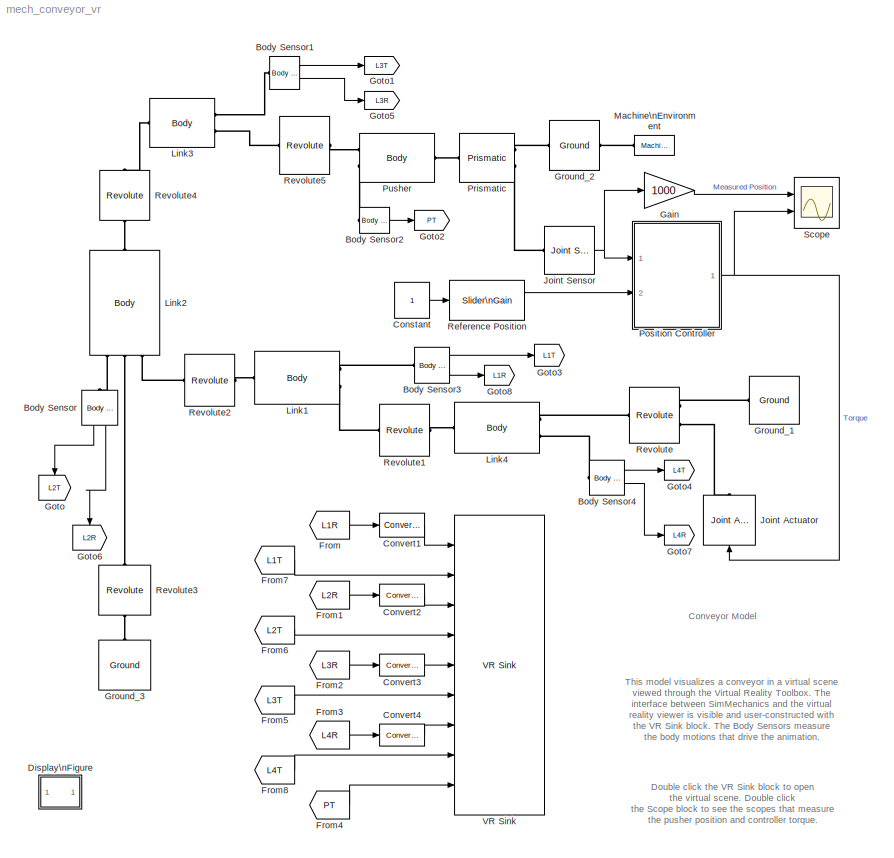
MODEL mech_conveyor_vr
KIND model
CONFIG InitFcn = mech_slider_open('mech_conveyor_vr')
CONFIG PreLoadFcn = load mech_conveyor_controller;
BLOCK [Reference] Body Sensor  REF=mblibv1/Sensors & \nActuators/Body Sensor
  Acceleration = off
  AccelerationUnits = m/s^2
  ActiveIO = on
  Angle = on
  AngleUnits = deg
  ArcAcceleration = off
  ArcAccelerationUnits = deg/s^2
  ArcVelocity = off
  ArcVelocityUnits = deg/s
  ClassName = BodySensor
  CoordPosition = on
  CoordPositionUnits = m
  Description = Mechanical Blockset
  DialogClass = MechanicalSensorBlock
  Muxed = off
  Opaque = on
  OutputVector = [ 3 9 ]
  PhysicalDomain = Mechanical
  PortType = blob
  Ports = [0, 2, 0, 0, 0, 1]
  Pose = on
  Quaternion = on
  QuaternionDDT = off
  QuaternionDT = off
  QuaternionUnits = off
  ReferenceFrame = Absolute (World)
  ShowPortLabels = on
  SourceBlock = mblibv1/Sensors & \nActuators/Body Sensor
  SourceType = msb
  Velocity = off
  VelocityUnits = m/s
  Width = 12
BLOCK [Reference] Body Sensor1  REF=mblibv1/Sensors & \nActuators/Body Sensor
  Acceleration = off
  AccelerationUnits = m/s^2
  ActiveIO = on
  Angle = on
  AngleUnits = deg
  ArcAcceleration = off
  ArcAccelerationUnits = deg/s^2
  ArcVelocity = off
  ArcVelocityUnits = deg/s
  ClassName = BodySensor
  CoordPosition = on
  CoordPositionUnits = m
  Description = Mechanical Blockset
  DialogClass = MechanicalSensorBlock
  Muxed = off
  Opaque = on
  OutputVector = [ 3 9 ]
  PhysicalDomain = Mechanical
  PortType = blob
  Ports = [0, 2, 0, 0, 0, 1]
  Pose = on
  Quaternion = on
  QuaternionDDT = off
  QuaternionDT = off
  QuaternionUnits = off
  ReferenceFrame = Absolute (World)
  ShowPortLabels = on
  SourceBlock = mblibv1/Sensors & \nActuators/Body Sensor
  SourceType = msb
  Velocity = off
  VelocityUnits = m/s
  Width = 12
BLOCK [Reference] Body Sensor2  REF=mblibv1/Sensors & \nActuators/Body Sensor
  Acceleration = off
  AccelerationUnits = m/s^2
  ActiveIO = on
  Angle = on
  AngleUnits = deg
  ArcAcceleration = off
  ArcAccelerationUnits = deg/s^2
  ArcVelocity = off
  ArcVelocityUnits = deg/s
  ClassName = BodySensor
  CoordPosition = on
  CoordPositionUnits = m
  Description = Mechanical Blockset
  DialogClass = MechanicalSensorBlock
  Muxed = on
  Opaque = on
  OutputVector = [ 3 ]
  PhysicalDomain = Mechanical
  PortType = blob
  Ports = [0, 1, 0, 0, 0, 1]
  Pose = off
  Quaternion = on
  QuaternionDDT = off
  QuaternionDT = off
  QuaternionUnits = off
  ReferenceFrame = Absolute (World)
  ShowPortLabels = on
  SourceBlock = mblibv1/Sensors & \nActuators/Body Sensor
  SourceType = msb
  Velocity = off
  VelocityUnits = m/s
  Width = 3
BLOCK [Reference] Body Sensor3  REF=mblibv1/Sensors & \nActuators/Body Sensor
  Acceleration = off
  AccelerationUnits = m/s^2
  ActiveIO = on
  Angle = on
  AngleUnits = deg
  ArcAcceleration = off
  ArcAccelerationUnits = deg/s^2
  ArcVelocity = off
  ArcVelocityUnits = deg/s
  ClassName = BodySensor
  CoordPosition = on
  CoordPositionUnits = m
  Description = Mechanical Blockset
  DialogClass = MechanicalSensorBlock
  Muxed = off
  Opaque = on
  OutputVector = [ 3 9 ]
  PhysicalDomain = Mechanical
  PortType = blob
  Ports = [0, 2, 0, 0, 0, 1]
  Pose = on
  Quaternion = on
  QuaternionDDT = off
  QuaternionDT = off
  QuaternionUnits = off
  ReferenceFrame = Absolute (World)
  ShowPortLabels = on
  SourceBlock = mblibv1/Sensors & \nActuators/Body Sensor
  SourceType = msb
  Velocity = off
  VelocityUnits = m/s
  Width = 12
BLOCK [Reference] Body Sensor4  REF=mblibv1/Sensors & \nActuators/Body Sensor
  Acceleration = off
  AccelerationUnits = m/s^2
  ActiveIO = on
  Angle = on
  AngleUnits = deg
  ArcAcceleration = off
  ArcAccelerationUnits = deg/s^2
  ArcVelocity = off
  ArcVelocityUnits = deg/s
  ClassName = BodySensor
  CoordPosition = on
  CoordPositionUnits = m
  Description = Mechanical Blockset
  DialogClass = MechanicalSensorBlock
  Muxed = off
  Opaque = on
  OutputVector = [ 3 9 ]
  PhysicalDomain = Mechanical
  PortType = blob
  Ports = [0, 2, 0, 0, 0, 1]
  Pose = on
  Quaternion = on
  QuaternionDDT = off
  QuaternionDT = off
  QuaternionUnits = off
  ReferenceFrame = Absolute (World)
  ShowPortLabels = on
  SourceBlock = mblibv1/Sensors & \nActuators/Body Sensor
  SourceType = msb
  Velocity = off
  VelocityUnits = m/s
  Width = 12
BLOCK [Constant] Constant
BLOCK [Reference] Convert1  REF=mblibv1/Utilities/Convert from Rotation Matrix to\nVirtual Reality Toolbox
  Ports = [1, 1]
  SourceBlock = mblibv1/Utilities/Convert from Rotation Matrix to\nVirtual Reality Toolbox
  SourceType = RotationMatrix2VR
  Tag = Pose2VR
BLOCK [Reference] Convert2  REF=mblibv1/Utilities/Convert from Rotation Matrix to\nVirtual Reality Toolbox
  Ports = [1, 1]
  SourceBlock = mblibv1/Utilities/Convert from Rotation Matrix to\nVirtual Reality Toolbox
  SourceType = RotationMatrix2VR
  Tag = Pose2VR
BLOCK [Reference] Convert3  REF=mblibv1/Utilities/Convert from Rotation Matrix to\nVirtual Reality Toolbox
  Ports = [1, 1]
  SourceBlock = mblibv1/Utilities/Convert from Rotation Matrix to\nVirtual Reality Toolbox
  SourceType = RotationMatrix2VR
  Tag = Pose2VR
BLOCK [Reference] Convert4  REF=mblibv1/Utilities/Convert from Rotation Matrix to\nVirtual Reality Toolbox
  Ports = [1, 1]
  SourceBlock = mblibv1/Utilities/Convert from Rotation Matrix to\nVirtual Reality Toolbox
  SourceType = RotationMatrix2VR
  Tag = Pose2VR
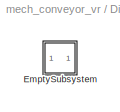
BLOCK [SubSystem] Display\nFigure
  AttributesFormatString = <path>
  Description = Help callback for virtual reality conveyor model: mech_conveyor_vr.  Opens Help browser to Type 19 marker at documentation for this tutorial model.
  MaskDisplay = disp('?');
  MaskIconFrame = off
  MaskIconOpaque = on
  MaskIconRotate = none
  MaskIconUnits = normalized
  MaskSelfModifiable = on
  MaskType = Help callback
  MinAlgLoopOccurrences = off
  OpenFcn = helpview([docroot '/toolbox/physmod/mech/mech.map'], 'mech_conveyor_vr_help');
  Ports = []
  RTWSystemCode = Auto
  Tag = Help
  TreatAsAtomicUnit = off
BLOCK [SubSystem] Display\nFigure/EmptySubsystem
  MinAlgLoopOccurrences = off
  Ports = []
  RTWSystemCode = Auto
  TreatAsAtomicUnit = off
BLOCK [From] From
  CloseFcn = tagdialog Close
  DialogController = Simulink.DDGSource
  GotoTag = L1R
BLOCK [From] From1
  CloseFcn = tagdialog Close
  DialogController = Simulink.DDGSource
  GotoTag = L2R
BLOCK [From] From2
  CloseFcn = tagdialog Close
  DialogController = Simulink.DDGSource
  GotoTag = L3R
BLOCK [From] From3
  CloseFcn = tagdialog Close
  DialogController = Simulink.DDGSource
  GotoTag = L4R
BLOCK [From] From4
  CloseFcn = tagdialog Close
  DialogController = Simulink.DDGSource
  GotoTag = PT
BLOCK [From] From5
  CloseFcn = tagdialog Close
  DialogController = Simulink.DDGSource
  GotoTag = L3T
BLOCK [From] From6
  CloseFcn = tagdialog Close
  DialogController = Simulink.DDGSource
  GotoTag = L2T
BLOCK [From] From7
  CloseFcn = tagdialog Close
  DialogController = Simulink.DDGSource
  GotoTag = L1T
BLOCK [From] From8
  CloseFcn = tagdialog Close
  DialogController = Simulink.DDGSource
  GotoTag = L4T
BLOCK [Gain] Gain
  Gain = 1000
BLOCK [Goto] Goto
  DialogController = Simulink.DDGSource
  GotoTag = L2T
  TagVisibility = global
BLOCK [Goto] Goto1
  DialogController = Simulink.DDGSource
  GotoTag = L3T
  TagVisibility = global
BLOCK [Goto] Goto2
  DialogController = Simulink.DDGSource
  GotoTag = PT
  TagVisibility = global
BLOCK [Goto] Goto3
  DialogController = Simulink.DDGSource
  GotoTag = L1T
  TagVisibility = global
BLOCK [Goto] Goto4
  DialogController = Simulink.DDGSource
  GotoTag = L4T
  TagVisibility = global
BLOCK [Goto] Goto5
  DialogController = Simulink.DDGSource
  GotoTag = L3R
  TagVisibility = global
BLOCK [Goto] Goto6
  DialogController = Simulink.DDGSource
  GotoTag = L2R
  TagVisibility = global
BLOCK [Goto] Goto7
  DialogController = Simulink.DDGSource
  GotoTag = L4R
  TagVisibility = global
BLOCK [Goto] Goto8
  DialogController = Simulink.DDGSource
  GotoTag = L1R
  TagVisibility = global
BLOCK [Reference] Ground_1  REF=mblibv1/Bodies/Ground
  ClassName = Ground
  CoordPosition = [0.280 0.210 0]
  CoordPositionUnits = m
  DialogClass = GroundBlock
  LeftPortType = env
  MachineId = [0 0]
  Opaque = on
  PhysicalDomain = Mechanical
  Ports = [0, 0, 0, 0, 0, 0, 1]
  RightPortType = workingframe
  ShowEnvPort = off
  ShowPortLabels = on
  SourceBlock = mblibv1/Bodies/Ground
  SourceType = msb
  StateVectorMgrId = -1
  UserData = DataTag0
  UserDataPersistent = on
BLOCK [Reference] Ground_2  REF=mblibv1/Bodies/Ground
  ClassName = Ground
  CoordPosition = [0.412 0.5 0]
  CoordPositionUnits = m
  DialogClass = GroundBlock
  LeftPortType = env
  MachineId = [0 0]
  Opaque = on
  PhysicalDomain = Mechanical
  Ports = [0, 0, 0, 0, 0, 1, 1]
  RightPortType = workingframe
  ShowEnvPort = on
  ShowPortLabels = on
  SourceBlock = mblibv1/Bodies/Ground
  SourceType = msb
  StateVectorMgrId = -1
  UserData = DataTag1
  UserDataPersistent = on
BLOCK [Reference] Ground_3  REF=mblibv1/Bodies/Ground
  ClassName = Ground
  CoordPosition = [0.08 0.11 0]
  CoordPositionUnits = m
  DialogClass = GroundBlock
  LeftPortType = env
  MachineId = [0 0]
  Opaque = on
  PhysicalDomain = Mechanical
  Ports = [0, 0, 0, 0, 0, 0, 1]
  RightPortType = workingframe
  ShowEnvPort = off
  ShowPortLabels = on
  SourceBlock = mblibv1/Bodies/Ground
  SourceType = msb
  StateVectorMgrId = -1
  UserData = DataTag2
  UserDataPersistent = on
BLOCK [Reference] Joint Actuator  REF=mblibv1/Sensors & \nActuators/Joint Actuator
  AccelerationUnits = m/s^2
  ActiveIO = on
  ActuationStyle = Force
  AngleUnits = rad
  ArcAccelerationUnits = rad/s^2
  ArcVelocityUnits = rad/s
  ClassName = JointActuator
  CoordPositionUnits = m
  Description = Mechanical Blockset
  DialogClass = MechanicalActuatorBlock
  ForceUnits = N
  Opaque = on
  PhysicalDomain = Mechanical
  PortType = blob
  Ports = [1, 0, 0, 0, 0, 0, 1]
  Primitive = R1
  ReferenceFrame = Absolute (INERTIAL)
  ShowPortLabels = on
  SourceBlock = mblibv1/Sensors & \nActuators/Joint Actuator
  SourceType = msb
  TorqueUnits = N-m
  VelocityUnits = m/s
  Width = 1
BLOCK [Reference] Joint Sensor  REF=mblibv1/Sensors & \nActuators/Joint Sensor
  Acceleration = off
  AccelerationUnits = m/s^2
  ActiveIO = on
  Angle = on
  AngleUnits = deg
  ArcAcceleration = off
  ArcAccelerationUnits = deg/s^2
  ArcVelocity = off
  ArcVelocityUnits = deg/s
  ClassName = JointSensor
  CoordPosition = on
  CoordPositionUnits = m
  Description = Mechanical Blockset
  DialogClass = MechanicalSensorBlock
  Force = off
  ForceUnits = N
  Muxed = on
  Opaque = on
  OutputVector = [ 1 ]
  PhysicalDomain = Mechanical
  PortType = blob
  Ports = [0, 1, 0, 0, 0, 1]
  Pose = off
  Primitive = P1
  Quaternion = on
  QuaternionDDT = off
  QuaternionDT = off
  QuaternionUnits = off
  ReactionForce = off
  ReactionForceUnits = N
  ReactionMoment = off
  ReactionMomentUnits = N-m
  ReactionReferenceFrame = Absolute (World)
  ReactionSensedSide = Base
  ReferenceFrame = Absolute (INERTIAL)
  ShowPortLabels = on
  SourceBlock = mblibv1/Sensors & \nActuators/Joint Sensor
  SourceType = msb
  Torque = off
  TorqueUnits = N-m
  Velocity = off
  VelocityUnits = m/s
  Width = 1
BLOCK [Reference] Link1  REF=mblibv1/Bodies/Body
  CG = Left$CG$[0.110 0.247 0]$WORLD$WORLD$m$[0 0 -4.22]$Euler X-Y-Z$deg$WORLD$false
  ClassName = Body
  Density = 1
  DensityUnits = kg/m^3
  DensityUse = false
  Description = Mechanical Blockset
  DialogClass = MechanicalBodyBlock
  Inertia = [7.6414e-005 -9.2222e-005 1.8971e-009;-9.2222e-005 0.0083286 -2.5235e-010;1.8971e-009 -2.5235e-010 0.0083397]
  InertiaUnits = kg*m^2
  LConnTagsString = CS3|CS1
  LeftPortType = workingframe
  Mass = 0.98785
  MassUnits = kg
  PhysicalDomain = mechanical
  Ports = [0, 0, 0, 0, 0, 2, 1]
  RConnTagsString = CS2
  RightPortType = workingframe
  Shape = Cylinder
  ShapeDims = [1 1]
  ShapeUnits = m
  ShapeUse = false
  SourceBlock = mblibv1/Bodies/Body
  SourceType = msb
  SubClassName = Unknown
  Tag = Factory generic
  WorkingFrames = Left$CS3$[0 0 0]$WORLD$WORLD$m$[0 0 0]$Euler X-Y-Z$deg$WORLD$true#Left$CS1$[0.265 0.236 0]$WORLD$WORLD$m$[0 0 0]$Euler X-Y-Z$deg$WORLD$true#Right$CS2$[-0.299 0.022 0]$WORLD$CS1$m$[0 0 0]$Euler X-Y-Z$deg$WORLD$true
BLOCK [Reference] Link2  REF=mblibv1/Bodies/Body
  CG = Left$CG$[-0.030 0.402 0]$WORLD$WORLD$m$[0 0 95.31]$Euler X-Y-Z$deg$WORLD$false
  ClassName = Body
  Density = 1
  DensityUnits = kg/m^3
  DensityUse = false
  Description = Mechanical Blockset
  DialogClass = MechanicalBodyBlock
  Inertia = [0.0044915 2.9472e-005 1.0996e-007;2.9472e-005 0.089001 -4.3534e-007;1.0996e-007 -4.3534e-007 0.093312]
  InertiaUnits = kg*m^2
  LConnTagsString = CS4|CS1|CS2
  LeftPortType = workingframe
  Mass = 2.7433
  MassUnits = kg
  PhysicalDomain = mechanical
  Ports = [0, 0, 0, 0, 0, 3, 1]
  RConnTagsString = CS3
  RightPortType = workingframe
  Shape = Cylinder
  ShapeDims = [1 1]
  ShapeUnits = m
  ShapeUse = false
  SourceBlock = mblibv1/Bodies/Body
  SourceType = msb
  SubClassName = Unknown
  Tag = Factory generic
  WorkingFrames = Left$CS4$[0 0 0]$WORLD$WORLD$m$[0 0 0]$Euler X-Y-Z$deg$WORLD$true#Left$CS1$[0.08 0.11 0]$WORLD$WORLD$m$[0 0 0]$Euler X-Y-Z$deg$WORLD$true#Left$CS2$[-0.114 0.148 0]$WORLD$CS1$m$[0 0 0]$Euler X-Y-Z$deg$WORLD$true#Right$CS3$[0.059 0.449 0]$WORLD$CS2$m$[0 0 0]$Euler X-Y-Z$deg$WORLD$true
BLOCK [Reference] Link3  REF=mblibv1/Bodies/Body
  CG = Left$CG$[0.194 0.604 0.01]$WORLD$WORLD$m$[90 -31.24 0]$Euler X-Y-Z$deg$WORLD$false
  ClassName = Body
  Density = 1
  DensityUnits = kg/m^3
  DensityUse = false
  Description = Mechanical Blockset
  DialogClass = MechanicalBodyBlock
  Inertia = [8.2129e-005 1.8216e-005 -3.7069e-010;1.8216e-005 0.017391 -2.6914e-011;-3.7069e-010 -2.6914e-011 0.017392]
  InertiaUnits = kg*m^2
  LConnTagsString = CS1
  LeftPortType = workingframe
  Mass = 1.2355
  MassUnits = kg
  PhysicalDomain = mechanical
  Ports = [0, 0, 0, 0, 0, 1, 2]
  RConnTagsString = CS3|CS2
  RightPortType = workingframe
  Shape = Cylinder
  ShapeDims = [1 1]
  ShapeUnits = m
  ShapeUse = false
  SourceBlock = mblibv1/Bodies/Body
  SourceType = msb
  SubClassName = Unknown
  Tag = Factory generic
  WorkingFrames = Right$CS3$[0 0 0]$WORLD$WORLD$m$[0 0 0]$Euler X-Y-Z$deg$WORLD$true#Left$CS1$[0.025 0.707 0]$WORLD$WORLD$m$[0 0 0]$Euler X-Y-Z$deg$WORLD$true#Right$CS2$[0.342 -0.207 0]$WORLD$CS1$m$[0 0 0]$Euler X-Y-Z$deg$WORLD$true
BLOCK [Reference] Link4  REF=mblibv1/Bodies/Body
  CG = Left$CG$[0.272 0.223 0.01]$WORLD$WORLD$m$[0 0 30]$Euler X-Y-Z$deg$WORLD$false
  ClassName = Body
  Density = 1
  DensityUnits = kg/m^3
  DensityUse = false
  Description = Mechanical Blockset
  DialogClass = MechanicalBodyBlock
  Inertia = [1.0148e-005 0 0;0 2.5218e-006 0;0 0 1.1711e-005]
  InertiaUnits = kg*m^2
  LConnTagsString = CS1|CS3
  LeftPortType = workingframe
  Mass = 0.057538
  MassUnits = kg
  PhysicalDomain = mechanical
  Ports = [0, 0, 0, 0, 0, 2, 1]
  RConnTagsString = CS2
  RightPortType = workingframe
  Shape = Cylinder
  ShapeDims = [1 1]
  ShapeUnits = m
  ShapeUse = false
  SourceBlock = mblibv1/Bodies/Body
  SourceType = msb
  SubClassName = Unknown
  Tag = Factory generic
  WorkingFrames = Left$CS1$[0.280 0.210 0]$WORLD$WORLD$m$[0 0 0]$Euler X-Y-Z$deg$WORLD$true#Right$CS2$[-0.015 0.026 0]$CS1$CS1$m$[0 0 0]$Euler X-Y-Z$deg$WORLD$true#Left$CS3$[0 0 0]$WORLD$WORLD$m$[0 0 0]$Euler X-Y-Z$deg$WORLD$true
BLOCK [Reference] Machine\nEnvironment  REF=mblibv1/Bodies/Machine\nEnvironment
  AnalysisType = Forward dynamics
  AngularAssemblyTolerance = 1e-3
  AngularAssemblyToleranceUnits = rad
  ClassName = Environment
  ConstraintAbsTolerance = 1e-4
  ConstraintRelTolerance = 1e-4
  ConstraintSolverType = Stabilizing
  DialogController = MECH.DialogSource
  DialogTemplateClass = MECH.MachineEnvironment
  Dimensionality = 3D Only
  Gravity = [0 -9.81 0]
  GravityAsSignal = off
  GravityUnits = m/s^2
  LinearAssemblyTolerance = 1e-3
  LinearAssemblyToleranceUnits = m
  Opaque = on
  PerturbationSize = 1e-3
  PhysicalDomain = Mechanical
  PortType = env
  Ports = [0, 0, 0, 0, 0, 0, 1]
  ShowPortLabels = on
  SourceBlock = mblibv1/Bodies/Machine\nEnvironment
  SourceType = Mechanical
  StatePerturbationType = Adaptive
  SyncWhenCopied = off
  Tag = Factory ground
  UseRobustSingularityHandling = off
  VisualizeMachine = on
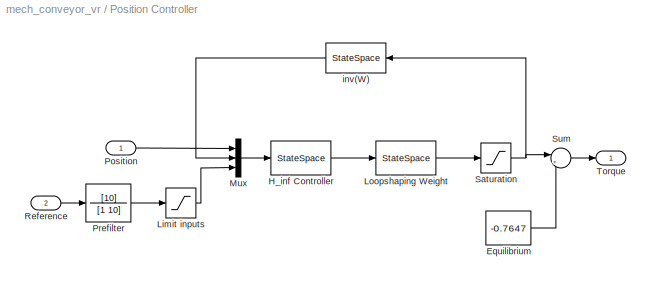
BLOCK [SubSystem] Position Controller
  MinAlgLoopOccurrences = off
  Ports = [2, 1]
  RTWSystemCode = Auto
  TreatAsAtomicUnit = off
BLOCK [Constant] Position Controller/Equilibrium
  Value = -0.7647
BLOCK [StateSpace] Position Controller/H_inf Controller
  A = Ak
  B = Bk
  C = Ck
  D = Dk
BLOCK [Saturate] Position Controller/Limit inputs
  LowerLimit = 0
  UpperLimit = 0.2
  ZeroCross = off
BLOCK [StateSpace] Position Controller/Loopshaping Weight
  A = Aw
  B = Bw
  C = Cw
  D = Dw
BLOCK [Mux] Position Controller/Mux
  DisplayOption = bar
  Inputs = 3
  Ports = [3, 1]
BLOCK [Inport] Position Controller/Position
  IconDisplay = Port number
  LatchInput = off
  Port = 1
BLOCK [TransferFcn] Position Controller/Prefilter
  Denominator = [1 10]
  Numerator = [10]
BLOCK [Inport] Position Controller/Reference
  IconDisplay = Port number
  LatchInput = off
  Port = 2
BLOCK [Saturate] Position Controller/Saturation
  LowerLimit = -5+0.7647
  UpperLimit = 5
  ZeroCross = off
BLOCK [Sum] Position Controller/Sum
  IconShape = round
  Inputs = |++
  Ports = [2, 1]
BLOCK [Outport] Position Controller/Torque
  BusOutputAsStruct = off
  IconDisplay = Port number
BLOCK [StateSpace] Position Controller/inv(W)
  A = Awinv
  B = Bwinv
  C = Cwinv
  D = Dwinv
BLOCK [Reference] Prismatic  REF=mblibv1/Joints/Prismatic
  ClassName = Joint
  CutJoint = off
  Description = Mechanical Blockset
  DialogClass = JointBlock
  LConnTagsString = __newl0|SA1
  LeftPortType = blob
  MarkAsCut = off
  NumSAPorts = 1
  PhysicalDomain = mechanical
  Ports = [0, 0, 0, 0, 0, 2, 1]
  PrimitiveProps = P1$WORLD$[1 0 0]$prismatic
  Primitives = prismatic
  RConnTagsString = __newr0
  RightPortType = blob
  SourceBlock = mblibv1/Joints/Prismatic
  SourceType = msb
  SubClassName = Unknown
  Tag = Factory generic
BLOCK [Reference] Pusher  REF=mblibv1/Bodies/Body
  CG = Left$CG$[0.396 0.499 0]$WORLD$WORLD$m$[0 0 0]$Euler X-Y-Z$deg$WORLD$false
  ClassName = Body
  Density = 1
  DensityUnits = kg/m^3
  DensityUse = false
  Description = Mechanical Blockset
  DialogClass = MechanicalBodyBlock
  Inertia = [0.0025031 -1.671e-006 5.5014e-006;-1.671e-006 0.0016406 -1.8596e-007;5.5014e-006 -1.8596e-007 0.0011862]
  InertiaUnits = kg*m^2
  LConnTagsString = CS1|CS3
  LeftPortType = workingframe
  Mass = 1.8547
  MassUnits = kg
  PhysicalDomain = mechanical
  Ports = [0, 0, 0, 0, 0, 2, 1]
  RConnTagsString = CS2
  RightPortType = workingframe
  Shape = Cylinder
  ShapeDims = [1 1]
  ShapeUnits = m
  ShapeUse = false
  SourceBlock = mblibv1/Bodies/Body
  SourceType = msb
  SubClassName = Unknown
  Tag = Factory generic
  WorkingFrames = Left$CS1$[0.367 0.5 0]$WORLD$WORLD$m$[0 0 0]$Euler X-Y-Z$deg$WORLD$true#Right$CS2$[0.045 0 0]$WORLD$CS1$m$[0 0 0]$Euler X-Y-Z$deg$WORLD$true#Left$CS3$[0 0 0]$WORLD$WORLD$m$[0 0 0]$Euler X-Y-Z$deg$WORLD$true
BLOCK [Reference] Reference Position  REF=simulink/Math\nOperations/Slider\nGain
  Ports = [1, 1]
  ShowPortLabels = on
  SourceBlock = simulink/Math\nOperations/Slider\nGain
  SourceType = Slider Gain
  Tag = 685  498  330   98
  gain = 0.09586
  high = 0.2
  low = 0
BLOCK [Reference] Revolute  REF=mblibv1/Joints/Revolute
  ClassName = Joint
  CutJoint = off
  Description = Mechanical Blockset
  DialogClass = JointBlock
  LConnTagsString = __newl0|SA1
  LeftPortType = blob
  MarkAsCut = off
  NumSAPorts = 1
  PhysicalDomain = mechanical
  Ports = [0, 0, 0, 0, 0, 2, 1]
  PrimitiveProps = R1$WORLD$[0 0 1]$revolute
  Primitives = revolute
  RConnTagsString = __newr0
  RightPortType = blob
  SourceBlock = mblibv1/Joints/Revolute
  SourceType = msb
  SubClassName = Unknown
  Tag = Factory generic
BLOCK [Reference] Revolute1  REF=mblibv1/Joints/Revolute
  ClassName = Joint
  CutJoint = off
  Description = Mechanical Blockset
  DialogClass = JointBlock
  LConnTagsString = __newl0
  LeftPortType = blob
  MarkAsCut = off
  NumSAPorts = 0
  PhysicalDomain = mechanical
  Ports = [0, 0, 0, 0, 0, 1, 1]
  PrimitiveProps = R1$WORLD$[0 0 1]$revolute
  Primitives = revolute
  RConnTagsString = __newr0
  RightPortType = blob
  SourceBlock = mblibv1/Joints/Revolute
  SourceType = msb
  SubClassName = Unknown
  Tag = Factory generic
BLOCK [Reference] Revolute2  REF=mblibv1/Joints/Revolute
  ClassName = Joint
  CutJoint = on
  Description = Mechanical Blockset
  DialogClass = JointBlock
  LConnTagsString = __newl0
  LeftPortType = blob
  MarkAsCut = off
  NumSAPorts = 0
  PhysicalDomain = mechanical
  Ports = [0, 0, 0, 0, 0, 1, 1]
  PrimitiveProps = R1$WORLD$[0 0 1]$revolute
  Primitives = revolute
  RConnTagsString = __newr0
  RightPortType = blob
  SourceBlock = mblibv1/Joints/Revolute
  SourceType = msb
  SubClassName = Unknown
  Tag = Factory generic
BLOCK [Reference] Revolute3  REF=mblibv1/Joints/Revolute
  ClassName = Joint
  CutJoint = off
  Description = Mechanical Blockset
  DialogClass = JointBlock
  LConnTagsString = __newl0
  LeftPortType = blob
  MarkAsCut = off
  NumSAPorts = 0
  PhysicalDomain = mechanical
  Ports = [0, 0, 0, 0, 0, 1, 1]
  PrimitiveProps = R1$WORLD$[0 0 1]$revolute
  Primitives = revolute
  RConnTagsString = __newr0
  RightPortType = blob
  SourceBlock = mblibv1/Joints/Revolute
  SourceType = msb
  SubClassName = Unknown
  Tag = Factory generic
BLOCK [Reference] Revolute4  REF=mblibv1/Joints/Revolute
  ClassName = Joint
  CutJoint = on
  Description = Mechanical Blockset
  DialogClass = JointBlock
  LConnTagsString = __newl0
  LeftPortType = blob
  MarkAsCut = off
  NumSAPorts = 0
  PhysicalDomain = mechanical
  Ports = [0, 0, 0, 0, 0, 1, 1]
  PrimitiveProps = R1$WORLD$[0 0 1]$revolute
  Primitives = revolute
  RConnTagsString = __newr0
  RightPortType = blob
  SourceBlock = mblibv1/Joints/Revolute
  SourceType = msb
  SubClassName = Unknown
  Tag = Factory generic
BLOCK [Reference] Revolute5  REF=mblibv1/Joints/Revolute
  ClassName = Joint
  CutJoint = off
  Description = Mechanical Blockset
  DialogClass = JointBlock
  LConnTagsString = __newl0
  LeftPortType = blob
  MarkAsCut = off
  NumSAPorts = 0
  PhysicalDomain = mechanical
  Ports = [0, 0, 0, 0, 0, 1, 1]
  PrimitiveProps = R1$WORLD$[0 0 1]$revolute
  Primitives = revolute
  RConnTagsString = __newr0
  RightPortType = blob
  SourceBlock = mblibv1/Joints/Revolute
  SourceType = msb
  SubClassName = Unknown
  Tag = Factory generic
BLOCK [Scope] Scope
  DataFormat = StructureWithTime
  NumInputPorts = 2
  Ports = [2]
  SaveName = ScopeData1
  TimeRange = 20
  YMax = 225~5
  YMin = -25~-5
BLOCK [Reference] VR Sink  REF=vrlib/VR Sink
  AutoView = off
  FieldsWritten = Link1.rotation.4#Link1.translation.3#Link2.rotation.4#Link2.translation.3#Link3.rotation.4#Link3.translation.3#Link4.rotation.4#Link4.translation.3#Pusher.translation.3
  FigureProperties = {}
  Ports = [9]
  RemoteChange = off
  RemoteView = off
  SampleTime = 0.1
  SourceBlock = vrlib/VR Sink
  SourceType = Virtual Reality Sink
  ViewEnable = on
  WorldDescription = convmech
  WorldFileName = convmech.wrl
ANNOTATION (root): Conveyor Model
ANNOTATION (root): Double click the VR Sink block to open\nthe virtual scene. Double click\nthe Scope block to see the scopes that measure\nthe pusher position and controller torque.
ANNOTATION (root): This model visualizes a conveyor in a virtual scene\nviewed through the Virtual Reality Toolbox. The\ninterface between SimMechanics and the virtual\nreality viewer is visible and user-constructed with\nthe VR Sink block. The Body Sensors measure\nthe body motions that drive the animation.
LINE Body Sensor1:1 -> Goto1:1
LINE Body Sensor1:2 -> Goto5:1
LINE Body Sensor2:1 -> Goto2:1
LINE Body Sensor3:1 -> Goto3:1
LINE Body Sensor3:2 -> Goto8:1
LINE Body Sensor4:1 -> Goto4:1
LINE Body Sensor4:2 -> Goto7:1
LINE Body Sensor:1 -> Goto:1
LINE Body Sensor:2 -> Goto6:1
LINE Constant:1 -> Reference Position:1
LINE Convert1:1 -> VR Sink:1
LINE Convert2:1 -> VR Sink:3
LINE Convert3:1 -> VR Sink:5
LINE Convert4:1 -> VR Sink:7
LINE From1:1 -> Convert2:1
LINE From2:1 -> Convert3:1
LINE From3:1 -> Convert4:1
LINE From4:1 -> VR Sink:9
LINE From5:1 -> VR Sink:6
LINE From6:1 -> VR Sink:4
LINE From7:1 -> VR Sink:2
LINE From8:1 -> VR Sink:8
LINE From:1 -> Convert1:1
LINE Gain:1 -> Scope:1
NET Joint Sensor:1 -> Gain:1, Position Controller:1
LINE Position Controller/Equilibrium:1 -> Position Controller/Sum:2
LINE Position Controller/H_inf Controller:1 -> Position Controller/Loopshaping Weight:1
LINE Position Controller/Limit inputs:1 -> Position Controller/Mux:3
LINE Position Controller/Loopshaping Weight:1 -> Position Controller/Saturation:1
LINE Position Controller/Mux:1 -> Position Controller/H_inf Controller:1
LINE Position Controller/Position:1 -> Position Controller/Mux:1
LINE Position Controller/Prefilter:1 -> Position Controller/Limit inputs:1
LINE Position Controller/Reference:1 -> Position Controller/Prefilter:1
NET Position Controller/Saturation:1 -> Position Controller/Sum:1, Position Controller/inv(W):1
LINE Position Controller/Sum:1 -> Position Controller/Torque:1
LINE Position Controller/inv(W):1 -> Position Controller/Mux:2
NET Position Controller:1 -> Joint Actuator:1, Scope:2
LINE Reference Position:1 -> Position Controller:2
PLINE Body Sensor1:LConn1 -- Link3:RConn1
PLINE Body Sensor2:LConn1 -- Pusher:LConn2
PLINE Body Sensor3:LConn1 -- Link1:LConn1
PLINE Body Sensor4:LConn1 -- Link4:LConn2
PLINE Body Sensor:LConn1 -- Link2:LConn1
PLINE Ground_1:RConn1 -- Revolute:LConn1
PLINE Ground_2:LConn1 -- Machine\nEnvironment:RConn1
PLINE Ground_2:RConn1 -- Prismatic:LConn1
PLINE Ground_3:RConn1 -- Revolute3:LConn1
PLINE Joint Actuator:RConn1 -- Revolute:LConn2
PLINE Joint Sensor:LConn1 -- Prismatic:LConn2
PLINE Link1:LConn2 -- Revolute1:RConn1
PLINE Link1:RConn1 -- Revolute2:LConn1
PLINE Link2:LConn2 -- Revolute3:RConn1
PLINE Link2:LConn3 -- Revolute2:RConn1
PLINE Link2:RConn1 -- Revolute4:LConn1
PLINE Link3:LConn1 -- Revolute4:RConn1
PLINE Link3:RConn2 -- Revolute5:LConn1
PLINE Link4:LConn1 -- Revolute:RConn1
PLINE Link4:RConn1 -- Revolute1:LConn1
PLINE Prismatic:RConn1 -- Pusher:RConn1
PLINE Pusher:LConn1 -- Revolute5:RConn1
note: NET lines group one-source signal fan-out (src -> all destinations, sorted); 1:1 wires keep LINE
note: 1 file-system path scrubbed to <path> (not preserved elsewhere — flat text is the only slx artifact)
